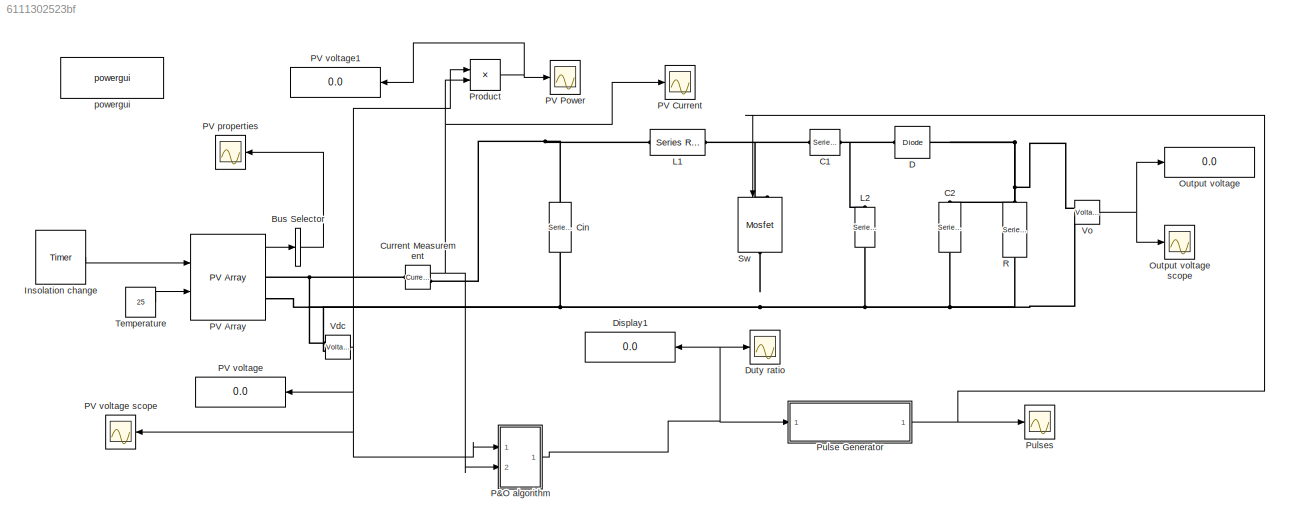
MODEL slx_6111302523bf
KIND model
CONFIG AbsTol = auto
CONFIG EnableMultiTasking = on
CONFIG FixedStep = auto
CONFIG MaxStep = auto
CONFIG MinStep = auto
CONFIG RelTol = 1e-3
CONFIG SampleTimeConstraint = Unconstrained
CONFIG Solver = VariableStepDiscrete
CONFIG SolverName = VariableStepDiscrete
CONFIG StartTime = 0.0
CONFIG StopTime = .02
BLOCK [BusSelector] Bus Selector
  OutputAsBus = on
  OutputSignals = V_PV,I_PV
  Ports = [1, 1]
BLOCK [Reference] C1  REF=powerlib/Elements/Series RLC Branch
  Ports = [0, 0, 0, 0, 0, 1, 1]
  SourceBlock = powerlib/Elements/Series RLC Branch
  SourceProductBaseCode = PS
  SourceProductName = Simscape Power Systems
  SourceType = Series RLC Branch
BLOCK [Reference] C2  REF=powerlib/Elements/Series RLC Branch
  Ports = [0, 0, 0, 0, 0, 1, 1]
  SourceBlock = powerlib/Elements/Series RLC Branch
  SourceProductBaseCode = PS
  SourceProductName = Simscape Power Systems
  SourceType = Series RLC Branch
BLOCK [Reference] Cin  REF=powerlib/Elements/Series RLC Branch
  Ports = [0, 0, 0, 0, 0, 1, 1]
  SourceBlock = powerlib/Elements/Series RLC Branch
  SourceProductBaseCode = PS
  SourceProductName = Simscape Power Systems
  SourceType = Series RLC Branch
BLOCK [Reference] Current Measurement  REF=powerlib/Measurements/Current Measurement
  Ports = [0, 1, 0, 0, 0, 1, 1]
  SourceBlock = powerlib/Measurements/Current Measurement
  SourceProductBaseCode = PS
  SourceProductName = Simscape Power Systems
  SourceType = Current Measurement
  UserDataPersistent = on
BLOCK [Reference] D  REF=powerlib/Power
Electronics/Diode
  Ports = [0, 0, 0, 0, 0, 1, 1]
  SourceBlock = powerlib/Power\nElectronics/Diode
  SourceProductBaseCode = PS
  SourceProductName = Simscape Power Systems
  SourceType = Diode
BLOCK [Display] Display1
  Decimation = 1
  Ports = [1]
BLOCK [Scope] Duty ratio
  NumInputPorts = 1
  Ports = [1]
  ScopeSpecificationString = C++SS(StrPVP('Location','[10, 60, 1372, 738]'),StrPVP('Open','off'),StrPVP('ZoomMode','yonly'),MxPVP('AxesTitles',53,'struct(''axes1'',''DUTY RATIO'')'),MxPVP('ScopeGraphics',56,'struct(''FigureColor'',''[0.501960784313725 0.501960784313725 0.501960784313725]'',''AxesColor'',''[1 1 1]'',''AxesTickColor'',''[0 0 0]'',''LineColors'',''[1 0 1;1 0 1;0 1 1;1 0 0;0 1 0;0 0 1]'',''LineStyles'',''-|-|-|-|...<+433ch>
BLOCK [Reference] Insolation change  REF=powerlib_extras/Control 
Blocks/Timer
  Ports = [0, 1]
  SourceBlock = powerlib_extras/Control \nBlocks/Timer
  SourceType = Timer
BLOCK [Reference] L1  REF=powerlib/Elements/Series RLC Branch
  Ports = [0, 0, 0, 0, 0, 1, 1]
  SourceBlock = powerlib/Elements/Series RLC Branch
  SourceProductBaseCode = PS
  SourceProductName = Simscape Power Systems
  SourceType = Series RLC Branch
BLOCK [Reference] L2  REF=powerlib/Elements/Series RLC Branch
  Ports = [0, 0, 0, 0, 0, 1, 1]
  SourceBlock = powerlib/Elements/Series RLC Branch
  SourceProductBaseCode = PS
  SourceProductName = Simscape Power Systems
  SourceType = Series RLC Branch
BLOCK [Display] Output voltage
  Decimation = 1
  Ports = [1]
BLOCK [Scope] Output voltage scope
  NumInputPorts = 1
  Ports = [1]
  ScopeSpecificationString = C++SS(StrPVP('Location','[10, 60, 1372, 738]'),StrPVP('Open','off'),StrPVP('ZoomMode','xonly'),MxPVP('AxesTitles',53,'struct(''axes1'',''OUTPUT VOLTAGE'')'),MxPVP('ScopeGraphics',56,'struct(''FigureColor'',''[0.501960784313725 0.501960784313725 0.501960784313725]'',''AxesColor'',''[1 1 1]'',''AxesTickColor'',''[0 0 0]'',''LineColors'',''[1 0 1;1 0 1;0 1 1;1 0 0;0 1 0;0 0 1]'',''LineStyles'',''-|-|...<+433ch>
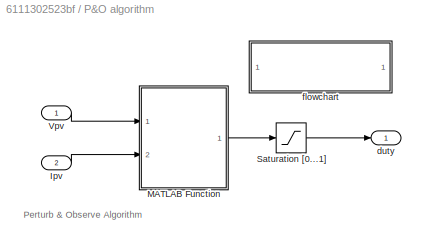
BLOCK [SubSystem] P&O algorithm
  Ports = [2, 1]
  RequestExecContextInheritance = off
  Variant = off
BLOCK [Inport] P&O algorithm/Ipv
  IconDisplay = Port number
  OutDataTypeStr = double
  Port = 2
  PortDimensions = 1
  SampleTime = [0.0001,0]
  SamplingMode = Sample based
  SignalType = real
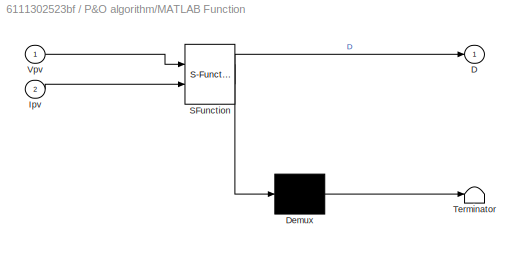
BLOCK [SubSystem] P&O algorithm/MATLAB Function
  ErrorFcn = Stateflow.Translate.translate
  PermitHierarchicalResolution = ExplicitOnly
  Ports = [2, 1]
  RequestExecContextInheritance = off
  SFBlockType = MATLAB Function
  TreatAsAtomicUnit = on
  Variant = off
BLOCK [Demux] P&O algorithm/MATLAB Function/ Demux 
  Outputs = 1
  Ports = [1, 1]
BLOCK [S-Function] P&O algorithm/MATLAB Function/ SFunction 
  EnableBusSupport = off
  FunctionName = sf_sfun
  PortCounts = [2 2]
  Ports = [2, 2]
  SFcnIsStateOwnerBlock = off
  SFunctionDeploymentMode = off
  Tag = Stateflow S-Function PandO 2
BLOCK [Terminator] P&O algorithm/MATLAB Function/ Terminator 
BLOCK [Outport] P&O algorithm/MATLAB Function/D
  IconDisplay = Port number
BLOCK [Inport] P&O algorithm/MATLAB Function/Ipv
  IconDisplay = Port number
  Port = 2
BLOCK [Inport] P&O algorithm/MATLAB Function/Vpv
  IconDisplay = Port number
BLOCK [Saturate] P&O algorithm/Saturation [0...1]
  InputPortMap = u0
  LinearizeAsGain = off
  LowerLimit = 0
  Ports = [1, 1]
  UpperLimit = 1
BLOCK [Inport] P&O algorithm/Vpv
  IconDisplay = Port number
  OutDataTypeStr = double
  PortDimensions = 1
  SampleTime = [0.0001,0]
  SamplingMode = Sample based
  SignalType = real
BLOCK [Outport] P&O algorithm/duty
  IconDisplay = Port number
  OutDataTypeStr = double
  PortDimensions = 1
  SampleTime = [0.0001,0]
  SamplingMode = Sample based
  SignalType = real
BLOCK [SubSystem] P&O algorithm/flowchart
  OpenFcn = winopen('PnO.jpg');
  Ports = []
  RequestExecContextInheritance = off
  Variant = off
BLOCK [Reference] PV Array  REF=re_lib/Solar/PV Array
  Ports = [2, 1, 0, 0, 0, 0, 2]
  SourceBlock = re_lib/Solar/PV Array
  SourceProductBaseCode = PS
  SourceProductName = Simscape Power Systems
  SourceType = PV array
BLOCK [Scope] PV Current
  NumInputPorts = 1
  Ports = [1]
  ScopeSpecificationString = C++SS(StrPVP('Location','[10, 60, 1372, 738]'),StrPVP('Open','off'),StrPVP('ZoomMode','yonly'),MxPVP('AxesTitles',53,'struct(''axes1'',''PANEL PROPERTIES'')'),MxPVP('ScopeGraphics',56,'struct(''FigureColor'',''[0.831372549019608 0.815686274509804 0.784313725490196]'',''AxesColor'',''[1 1 1]'',''AxesTickColor'',''[0 0 0]'',''LineColors'',''[1 0 0;0 0.498039215686275 0;0 1 1;1 0 0;0 1 0;0 0 1]'',''L...<+479ch>
BLOCK [Scope] PV Power
  NumInputPorts = 1
  Ports = [1]
  ScopeSpecificationString = C++SS(StrPVP('Location','[10, 60, 1372, 738]'),StrPVP('Open','off'),StrPVP('ZoomMode','xonly'),MxPVP('AxesTitles',53,'struct(''axes1'',''POWER OUTPUT FROM PANEL'')'),MxPVP('ScopeGraphics',56,'struct(''FigureColor'',''[0.831372549019608 0.815686274509804 0.784313725490196]'',''AxesColor'',''[1 1 1]'',''AxesTickColor'',''[0 0 0]'',''LineColors'',''[1 0 0;0 0.498039215686275 0;0 1 1;1 0 0;0 1 0;0 0 1...<+478ch>
BLOCK [Scope] PV properties
  NumInputPorts = 1
  Ports = [1]
  ScopeSpecificationString = C++SS(StrPVP('Location','[10, 60, 1372, 738]'),StrPVP('Open','off'),StrPVP('ZoomMode','xonly'),MxPVP('AxesTitles',53,'struct(''axes1'',''PANEL PROPERTIES'')'),MxPVP('ScopeGraphics',56,'struct(''FigureColor'',''[0.831372549019608 0.815686274509804 0.784313725490196]'',''AxesColor'',''[1 1 1]'',''AxesTickColor'',''[0 0 0]'',''LineColors'',''[1 0 0;0 0.498039215686275 0;0 1 1;1 0 0;0 1 0;0 0 1]'',''L...<+468ch>
BLOCK [Display] PV voltage
  Decimation = 1
  Ports = [1]
BLOCK [Scope] PV voltage scope
  NumInputPorts = 1
  Ports = [1]
  ScopeSpecificationString = C++SS(StrPVP('Location','[10, 60, 1372, 738]'),StrPVP('Open','off'),StrPVP('ZoomMode','yonly'),MxPVP('AxesTitles',53,'struct(''axes1'',''PANEL VOLTAGE'')'),MxPVP('ScopeGraphics',56,'struct(''FigureColor'',''[0.501960784313725 0.501960784313725 0.501960784313725]'',''AxesColor'',''[1 1 1]'',''AxesTickColor'',''[0 0 0]'',''LineColors'',''[1 0 1;1 0 1;0 1 1;1 0 0;0 1 0;0 0 1]'',''LineStyles'',''-|-|-...<+406ch>
BLOCK [Display] PV voltage1
  Decimation = 1
  Ports = [1]
BLOCK [Product] Product
  InputSameDT = off
  OutDataTypeStr = Inherit: Inherit via internal rule
  Ports = [2, 1]
  RndMeth = Floor
  SaturateOnIntegerOverflow = off
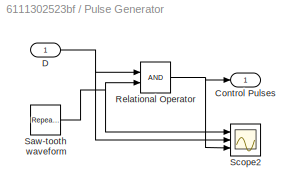
BLOCK [SubSystem] Pulse Generator
  Ports = [1, 1]
  RequestExecContextInheritance = off
  Variant = off
BLOCK [Outport] Pulse Generator/Control Pulses
  IconDisplay = Port number
BLOCK [Inport] Pulse Generator/D
  IconDisplay = Port number
BLOCK [RelationalOperator] Pulse Generator/Relational Operator
  InputSameDT = off
  OutDataTypeStr = boolean
  Ports = [2, 1]
BLOCK [Reference] Pulse Generator/Saw-tooth waveform  REF=simulink/Sources/Repeating
Sequence
  Ports = [0, 1]
  SourceBlock = simulink/Sources/Repeating\nSequence
  SourceProductBaseCode = SL
  SourceProductName = Simulink
  SourceType = Repeating table
BLOCK [Scope] Pulse Generator/Scope2
  NumInputPorts = 3
  Ports = [3]
  ScopeSpecificationString = C++SS(StrPVP('Location','[437, 146, 1019, 578]'),StrPVP('Open','off'),StrPVP('ZoomMode','xonly'),MxPVP('AxesTitles',53,'struct(''axes1'',''Input Voltage'',''axes2'',''Output Voltage'',''axes3'',''Output Current'')'),StrPVP('TimeRange','0.004           '),StrPVP('YMin','5.55112e-017~0.7~0'),StrPVP('YMax','1~0.7~1'),StrPVP('SaveName','ScopeData2'),StrPVP('DataFormat','StructureWithTime'),StrPVP('Blo...<+118ch>
BLOCK [Scope] Pulses
  NumInputPorts = 1
  Ports = [1]
  ScopeSpecificationString = C++SS(StrPVP('Location','[10, 60, 1372, 738]'),StrPVP('Open','off'),StrPVP('ZoomMode','xonly'),MxPVP('AxesTitles',53,'struct(''axes1'',''PULSE'')'),MxPVP('ScopeGraphics',56,'struct(''FigureColor'',''[0.501960784313725 0.501960784313725 0.501960784313725]'',''AxesColor'',''[1 1 1]'',''AxesTickColor'',''[0 0 0]'',''LineColors'',''[1 0 1;1 0 1;0 1 1;1 0 0;0 1 0;0 0 1]'',''LineStyles'',''-|-|-|-|-|-''...<+397ch>
BLOCK [Reference] R  REF=powerlib/Elements/Series RLC Branch
  Ports = [0, 0, 0, 0, 0, 1, 1]
  SourceBlock = powerlib/Elements/Series RLC Branch
  SourceProductBaseCode = PS
  SourceProductName = Simscape Power Systems
  SourceType = Series RLC Branch
BLOCK [Reference] Sw  REF=powerlib/Power
Electronics/Mosfet
  Ports = [1, 0, 0, 0, 0, 1, 1]
  SourceBlock = powerlib/Power\nElectronics/Mosfet
  SourceProductBaseCode = PS
  SourceProductName = Simscape Power Systems
  SourceType = Mosfet
BLOCK [Constant] Temperature
  SampleTime = 2e-5
  Value = 25
  VectorParams1D = off
BLOCK [Reference] Vdc   REF=powerlib/Measurements/Voltage Measurement
  AttributesFormatString = \n
  Ports = [0, 1, 0, 0, 0, 2]
  SourceBlock = powerlib/Measurements/Voltage Measurement
  SourceProductBaseCode = PS
  SourceProductName = Simscape Power Systems
  SourceType = Voltage Measurement
  Tag = PoWeRsYsTeMmEaSuReMeNt
BLOCK [Reference] Vo  REF=powerlib/Measurements/Voltage Measurement
  Ports = [0, 1, 0, 0, 0, 2]
  SourceBlock = powerlib/Measurements/Voltage Measurement
  SourceProductBaseCode = PS
  SourceProductName = Simscape Power Systems
  SourceType = Voltage Measurement
BLOCK [Reference] powergui  REF=powerlib/powergui
  Ports = []
  Priority = 1
  SourceBlock = powerlib/powergui
  SourceProductBaseCode = PS
  SourceProductName = Simscape Power Systems
  SourceType = PSB option menu block
ANNOTATION P&O algorithm: Perturb & Observe Algorithm
LINE Bus Selector:1 -> PV properties:1
NET Current Measurement:1 -> P&O algorithm:2, PV Current:1, Product:2
LINE Insolation change:1 -> PV Array:1
LINE P&O algorithm/Ipv:1 -> P&O algorithm/MATLAB Function:2
LINE P&O algorithm/MATLAB Function:1 -> P&O algorithm/Saturation [0...1]:1
LINE P&O algorithm/Saturation [0...1]:1 -> P&O algorithm/duty:1
LINE P&O algorithm/Vpv:1 -> P&O algorithm/MATLAB Function:1
NET P&O algorithm:1 -> Display1:1, Duty ratio:1, Pulse Generator:1
LINE PV Array:1 -> Bus Selector:1
NET Product:1 -> PV Power:1, PV voltage1:1
NET Pulse Generator/D:1 -> Pulse Generator/Relational Operator:1, Pulse Generator/Scope2:2
NET Pulse Generator/Relational Operator:1 -> Pulse Generator/Control Pulses:1, Pulse Generator/Scope2:3
NET Pulse Generator/Saw-tooth waveform:1 -> Pulse Generator/Relational Operator:2, Pulse Generator/Scope2:1
NET Pulse Generator:1 -> Pulses:1, Sw:1
LINE Temperature:1 -> PV Array:2
NET Vdc :1 -> P&O algorithm:1, PV voltage scope:1, PV voltage:1, Product:1
NET Vo:1 -> Output voltage scope:1, Output voltage:1
PNET net1: C1:LConn1 -- L1:RConn1 -- Sw:LConn1
PNET net2: C1:RConn1 -- D:LConn1 -- L2:LConn1
PNET net3: C2:LConn1 -- D:RConn1 -- R:LConn1 -- Vo:LConn1
PNET net4: C2:RConn1 -- Cin:RConn1 -- L2:RConn1 -- PV Array:RConn2 -- R:RConn1 -- Sw:RConn1 -- Vdc :LConn2 -- Vo:LConn2
PNET net5: Cin:LConn1 -- Current Measurement:RConn1 -- L1:LConn1
PNET net6: Current Measurement:LConn1 -- PV Array:RConn1 -- Vdc :LConn1
note: NET lines group one-source signal fan-out (src -> all destinations, sorted); 1:1 wires keep LINE; PNET lines group multi-terminal physical nets as a canonical sorted terminal list (undirected conserving connections); 2-terminal nets keep the pairwise PLINE form
CHART P&O algorithm/MATLAB Function states=1 transitions=1
  STATE_LABEL 'eML_blk_kernel()'
  STATE_LABEL 'SCRIPT:\nfunction D = PandO(Vpv,Ipv)\n\npersistent Dprev Pprev Vprev\n\n% Initialize the internal values for the voltage and power on the\n% first pass\n if isempty(Dprev)\n     Dprev = .58;\n     Vprev = 12;\n     Pprev = 16.2;\n end\n\n% Initialize algorithm parameters\ndeltaD = 0.00025;\n\n% Calculate measured array power\nPpv = Vpv*Ipv;\n\n% Increase or decrease duty cycle based on conditions\nif (Ppv-Pprev) ~= 0...<+378ch>'
